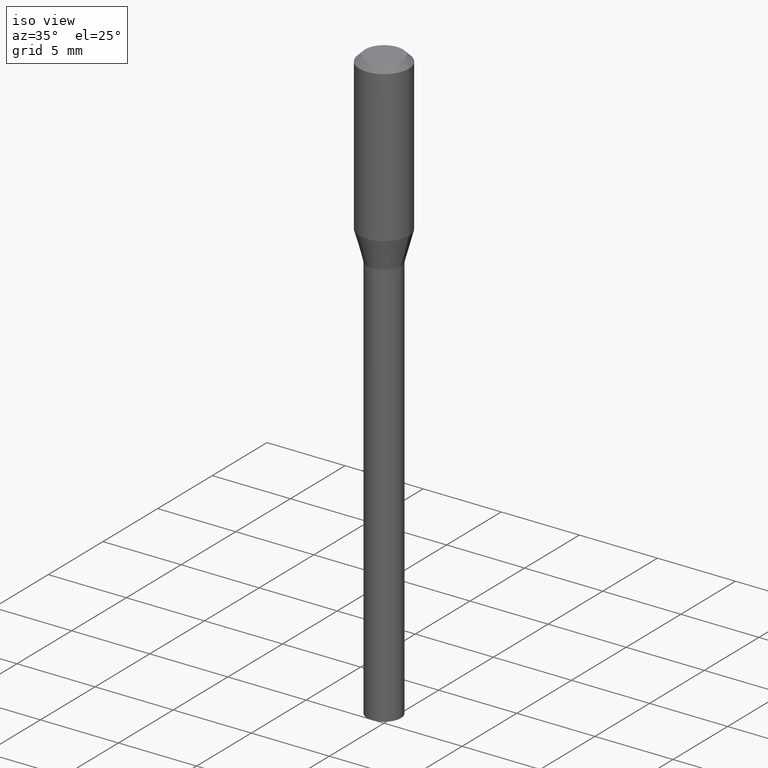
[diagram: clean part render]
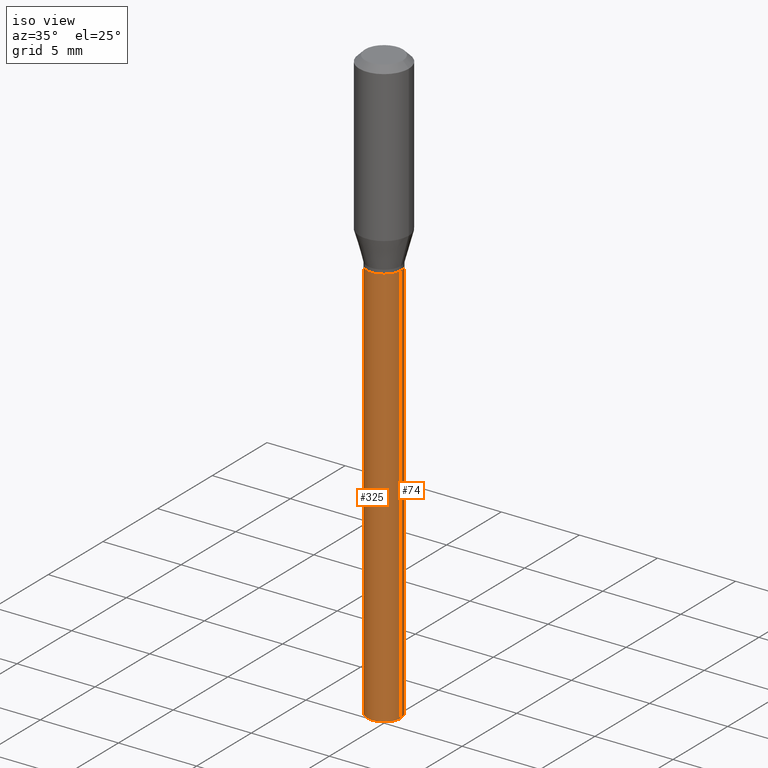
[diagram: same view with one multi-face feature highlighted, each face labeled with its STEP entity id]
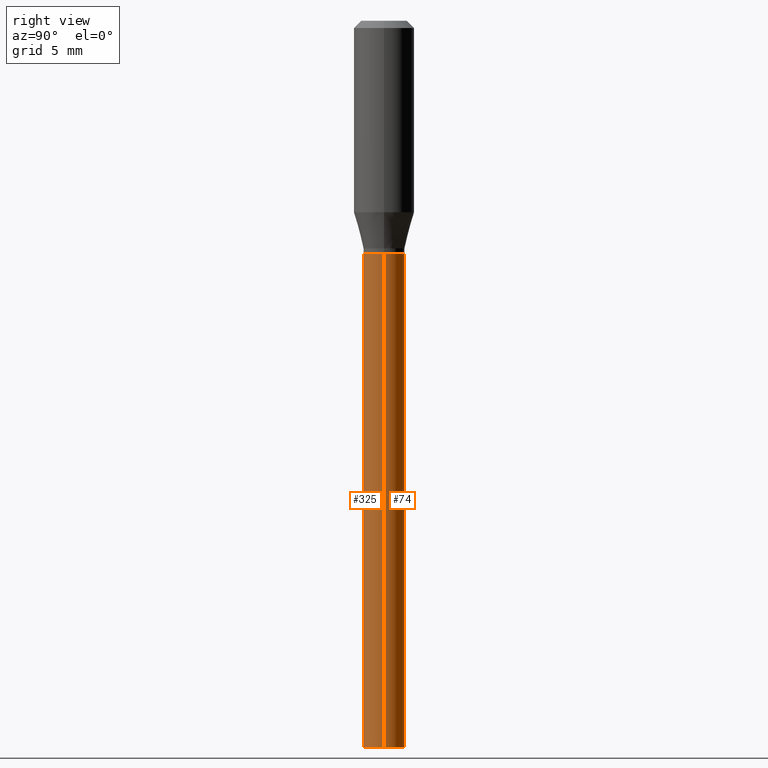
[diagram: same view with one multi-face feature highlighted, each face labeled with its STEP entity id]
A machine part, iso view. The highlighted faces form ONE feature: a constant-radius fillet chain: 2 tangent blend faces with common blend radius 1.0795 mm. The faces share edges in the B-rep.
A second angle (right view) of the same feature is appended — it is thin or edge-on in the first view.
Their STEP definitions:
[1] entity #74 (Cylinder):
#6 = EDGE_CURVE ( 'NONE', #379, #358, #69, .T. ) ;
#47 = DIRECTION ( 'NONE',  ( 1.000000000000000000, -6.982962677686267499E-15, 4.876176775795935793E-29 ) ) ;
#50 = ORIENTED_EDGE ( 'NONE', *, *, #272, .F. ) ;
#59 = EDGE_LOOP ( 'NONE', ( #138, #332, #275, #50 ) ) ;
#69 = LINE ( 'NONE', #137, #150 ) ;
#74 = ADVANCED_FACE ( 'NONE', ( #301 ), #372, .T. ) ;
#118 = CARTESIAN_POINT ( 'NONE',  ( 0.000000000000000000, 0.000000000000000000, 0.000000000000000000 ) ) ;
#122 = CARTESIAN_POINT ( 'NONE',  ( 0.04249999999999999611, -1.972686956446376341E-15, -0.4800000000000000933 ) ) ;
#131 = CARTESIAN_POINT ( 'NONE',  ( -0.04249999999999999611, -3.154585862756671481E-15, -0.4800000000000000933 ) ) ;
#137 = CARTESIAN_POINT ( 'NONE',  ( -0.04249999999999999611, 3.019806626980425514E-16, -2.090547413358334859E-30 ) ) ;
#138 = ORIENTED_EDGE ( 'NONE', *, *, #422, .T. ) ;
#146 = AXIS2_PLACEMENT_3D ( 'NONE', #312, #237, #380 ) ;
#150 = VECTOR ( 'NONE', #360, 39.37007874015748143 ) ;
#151 = DIRECTION ( 'NONE',  ( -2.445468806185136597E-29, 3.491481338843145583E-15, 1.000000000000000000 ) ) ;
#167 = VERTEX_POINT ( 'NONE', #401 ) ;
#171 = CIRCLE ( 'NONE', #191, 0.04249999999999999611 ) ;
#172 = CARTESIAN_POINT ( 'NONE',  ( 3.668203209277704895E-29, -5.237222008264718177E-15, -1.500000000000000222 ) ) ;
#177 = VERTEX_POINT ( 'NONE', #122 ) ;
#191 = AXIS2_PLACEMENT_3D ( 'NONE', #172, #376, #279 ) ;
#208 = DIRECTION ( 'NONE',  ( -2.445468806185136877E-29, 3.491481338843145188E-15, 1.000000000000000000 ) ) ;
#221 = VECTOR ( 'NONE', #208, 39.37007874015748143 ) ;
#237 = DIRECTION ( 'NONE',  ( -2.445468806185136597E-29, 3.491481338843145583E-15, 1.000000000000000000 ) ) ;
#272 = EDGE_CURVE ( 'NONE', #167, #177, #386, .T. ) ;
#275 = ORIENTED_EDGE ( 'NONE', *, *, #449, .F. ) ;
#279 = DIRECTION ( 'NONE',  ( 1.000000000000000000, -6.982962677686276177E-15, 0.000000000000000000 ) ) ;
#301 = FACE_OUTER_BOUND ( 'NONE', #59, .T. ) ;
#312 = CARTESIAN_POINT ( 'NONE',  ( 1.173825026968865768E-29, -1.675911042644710085E-15, -0.4800000000000000933 ) ) ;
#327 = CIRCLE ( 'NONE', #146, 0.04249999999999999611 ) ;
#332 = ORIENTED_EDGE ( 'NONE', *, *, #6, .T. ) ;
#355 = CARTESIAN_POINT ( 'NONE',  ( 0.04249999999999999611, -2.967759138016663549E-16, 2.072375129713272502E-30 ) ) ;
#358 = VERTEX_POINT ( 'NONE', #131 ) ;
#360 = DIRECTION ( 'NONE',  ( -2.445468806185136877E-29, 3.491481338843145188E-15, 1.000000000000000000 ) ) ;
#372 = CYLINDRICAL_SURFACE ( 'NONE', #399, 0.04249999999999999611 ) ;
#376 = DIRECTION ( 'NONE',  ( -2.445468806185136597E-29, 3.491481338843145583E-15, 1.000000000000000000 ) ) ;
#379 = VERTEX_POINT ( 'NONE', #383 ) ;
#380 = DIRECTION ( 'NONE',  ( 1.000000000000000000, -6.982962677686265133E-15, 0.000000000000000000 ) ) ;
#383 = CARTESIAN_POINT ( 'NONE',  ( -0.04249999999999999611, -3.154585862756671481E-15, -1.500000000000000222 ) ) ;
#386 = LINE ( 'NONE', #355, #221 ) ;
#399 = AXIS2_PLACEMENT_3D ( 'NONE', #118, #151, #47 ) ;
#401 = CARTESIAN_POINT ( 'NONE',  ( 0.04249999999999999611, -5.533997922066385616E-15, -1.500000000000000222 ) ) ;
#422 = EDGE_CURVE ( 'NONE', #167, #379, #171, .T. ) ;
#449 = EDGE_CURVE ( 'NONE', #177, #358, #327, .T. ) ;
[2] entity #325 (Cylinder):
#1 = CARTESIAN_POINT ( 'NONE',  ( 0.000000000000000000, 0.000000000000000000, 0.000000000000000000 ) ) ;
#6 = EDGE_CURVE ( 'NONE', #379, #358, #69, .T. ) ;
#8 = CARTESIAN_POINT ( 'NONE',  ( 1.173825026968865768E-29, -1.675911042644710085E-15, -0.4800000000000000933 ) ) ;
#9 = DIRECTION ( 'NONE',  ( -2.445468806185136597E-29, 3.491481338843145583E-15, 1.000000000000000000 ) ) ;
#31 = AXIS2_PLACEMENT_3D ( 'NONE', #438, #79, #265 ) ;
#35 = CIRCLE ( 'NONE', #31, 0.04249999999999999611 ) ;
#39 = FACE_OUTER_BOUND ( 'NONE', #324, .T. ) ;
#69 = LINE ( 'NONE', #137, #150 ) ;
#71 = EDGE_CURVE ( 'NONE', #358, #177, #136, .T. ) ;
#79 = DIRECTION ( 'NONE',  ( -2.445468806185136597E-29, 3.491481338843145583E-15, 1.000000000000000000 ) ) ;
#122 = CARTESIAN_POINT ( 'NONE',  ( 0.04249999999999999611, -1.972686956446376341E-15, -0.4800000000000000933 ) ) ;
#123 = DIRECTION ( 'NONE',  ( 1.000000000000000000, -6.982962677686265133E-15, 0.000000000000000000 ) ) ;
#131 = CARTESIAN_POINT ( 'NONE',  ( -0.04249999999999999611, -3.154585862756671481E-15, -0.4800000000000000933 ) ) ;
#132 = ORIENTED_EDGE ( 'NONE', *, *, #71, .F. ) ;
#136 = CIRCLE ( 'NONE', #264, 0.04249999999999999611 ) ;
#137 = CARTESIAN_POINT ( 'NONE',  ( -0.04249999999999999611, 3.019806626980425514E-16, -2.090547413358334859E-30 ) ) ;
#150 = VECTOR ( 'NONE', #360, 39.37007874015748143 ) ;
#165 = ORIENTED_EDGE ( 'NONE', *, *, #180, .T. ) ;
#167 = VERTEX_POINT ( 'NONE', #401 ) ;
#177 = VERTEX_POINT ( 'NONE', #122 ) ;
#180 = EDGE_CURVE ( 'NONE', #379, #167, #35, .T. ) ;
#208 = DIRECTION ( 'NONE',  ( -2.445468806185136877E-29, 3.491481338843145188E-15, 1.000000000000000000 ) ) ;
#221 = VECTOR ( 'NONE', #208, 39.37007874015748143 ) ;
#252 = AXIS2_PLACEMENT_3D ( 'NONE', #1, #9, #259 ) ;
#259 = DIRECTION ( 'NONE',  ( 1.000000000000000000, -6.982962677686267499E-15, 4.876176775795935793E-29 ) ) ;
#264 = AXIS2_PLACEMENT_3D ( 'NONE', #8, #437, #123 ) ;
#265 = DIRECTION ( 'NONE',  ( 1.000000000000000000, -6.982962677686276177E-15, 0.000000000000000000 ) ) ;
#267 = CYLINDRICAL_SURFACE ( 'NONE', #252, 0.04249999999999999611 ) ;
#271 = ORIENTED_EDGE ( 'NONE', *, *, #272, .T. ) ;
#272 = EDGE_CURVE ( 'NONE', #167, #177, #386, .T. ) ;
#324 = EDGE_LOOP ( 'NONE', ( #427, #165, #271, #132 ) ) ;
#325 = ADVANCED_FACE ( 'NONE', ( #39 ), #267, .T. ) ;
#355 = CARTESIAN_POINT ( 'NONE',  ( 0.04249999999999999611, -2.967759138016663549E-16, 2.072375129713272502E-30 ) ) ;
#358 = VERTEX_POINT ( 'NONE', #131 ) ;
#360 = DIRECTION ( 'NONE',  ( -2.445468806185136877E-29, 3.491481338843145188E-15, 1.000000000000000000 ) ) ;
#379 = VERTEX_POINT ( 'NONE', #383 ) ;
#383 = CARTESIAN_POINT ( 'NONE',  ( -0.04249999999999999611, -3.154585862756671481E-15, -1.500000000000000222 ) ) ;
#386 = LINE ( 'NONE', #355, #221 ) ;
#401 = CARTESIAN_POINT ( 'NONE',  ( 0.04249999999999999611, -5.533997922066385616E-15, -1.500000000000000222 ) ) ;
#427 = ORIENTED_EDGE ( 'NONE', *, *, #6, .F. ) ;
#437 = DIRECTION ( 'NONE',  ( -2.445468806185136597E-29, 3.491481338843145583E-15, 1.000000000000000000 ) ) ;
#438 = CARTESIAN_POINT ( 'NONE',  ( 3.668203209277704895E-29, -5.237222008264718177E-15, -1.500000000000000222 ) ) ;